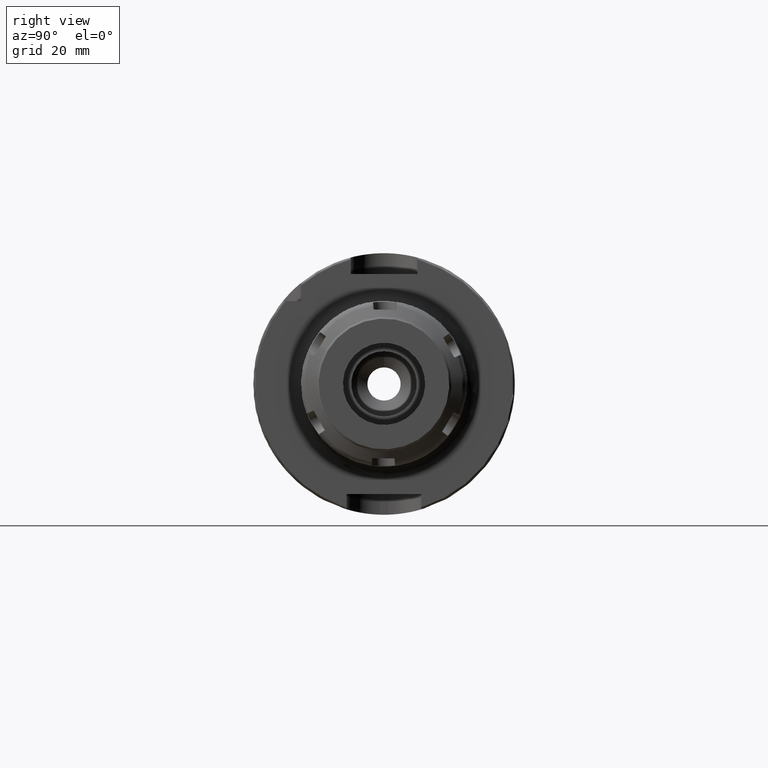
[diagram: clean part render]
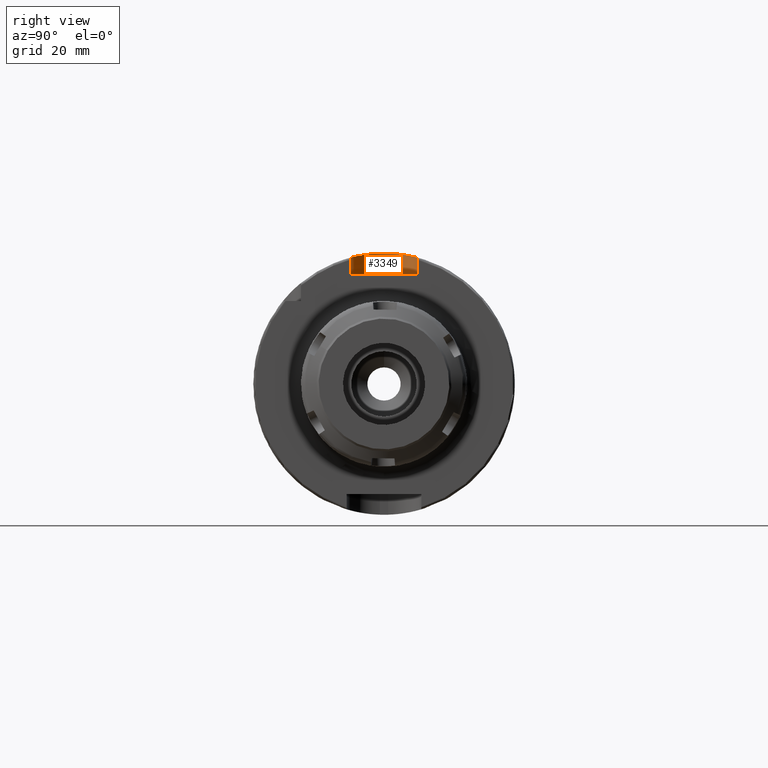
[diagram: same view with one face highlighted and labeled with its STEP entity id]
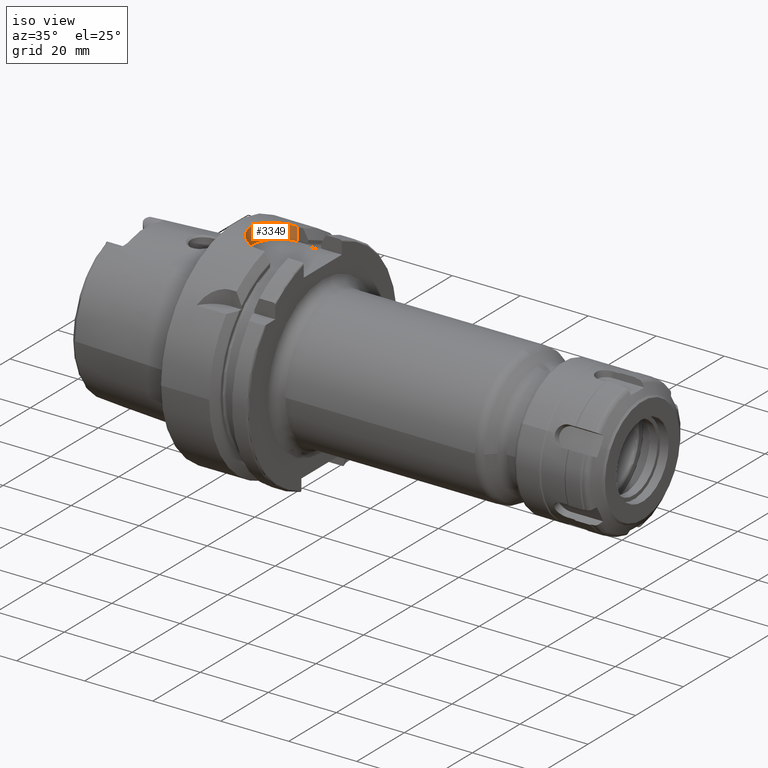
[diagram: same view with one face highlighted and labeled with its STEP entity id]
A machine part, right view. The second image highlights one B-rep face of the part: STEP entity #3349.
A second angle (iso view) of the same face is appended — the face is thin or edge-on in the first view.
In plain terms, the highlighted cylindrical surface (edge-blend (fillet) strip) has radius 8 mm, axis along (0, 0, 1).
Its self-contained STEP definition (entity closure, byte-faithful):
#103=B_SPLINE_CURVE_WITH_KNOTS('',3,(#6269,#6270,#6271,#6272,#6273,#6274,
#6275,#6276,#6277,#6278,#6279,#6280,#6281,#6282,#6283,#6284,#6285,#6286),
 .UNSPECIFIED.,.F.,.F.,(4,2,2,2,2,2,2,2,4),(0.,0.302805879979318,0.605611759958635,
0.908372461246501,1.21113316253437,1.51389386382223,1.8166545651101,2.11946044508942,
2.42226632506874),.UNSPECIFIED.);
#279=CYLINDRICAL_SURFACE('',#3704,8.);
#388=FACE_OUTER_BOUND('',#586,.T.);
#586=EDGE_LOOP('',(#2608,#2609,#2610,#2611));
#799=LINE('',#6261,#1005);
#801=LINE('',#6289,#1007);
#1005=VECTOR('',#4382,10.);
#1007=VECTOR('',#4388,10.);
#1213=CIRCLE('',#3705,8.);
#1499=VERTEX_POINT('',#6258);
#1500=VERTEX_POINT('',#6260);
#1502=VERTEX_POINT('',#6268);
#1503=VERTEX_POINT('',#6287);
#1914=EDGE_CURVE('',#1499,#1500,#799,.T.);
#1917=EDGE_CURVE('',#1500,#1502,#103,.T.);
#1918=EDGE_CURVE('',#1503,#1499,#1213,.T.);
#1919=EDGE_CURVE('',#1503,#1502,#801,.T.);
#2608=ORIENTED_EDGE('',*,*,#1917,.F.);
#2609=ORIENTED_EDGE('',*,*,#1914,.F.);
#2610=ORIENTED_EDGE('',*,*,#1918,.F.);
#2611=ORIENTED_EDGE('',*,*,#1919,.T.);
#3349=ADVANCED_FACE('',(#388),#279,.F.);
#3704=AXIS2_PLACEMENT_3D('',#6267,#4384,#4385);
#3705=AXIS2_PLACEMENT_3D('',#6288,#4386,#4387);
#4382=DIRECTION('',(0.,0.,1.));
#4384=DIRECTION('center_axis',(0.,0.,1.));
#4385=DIRECTION('ref_axis',(0.,1.,0.));
#4386=DIRECTION('center_axis',(0.,0.,1.));
#4387=DIRECTION('ref_axis',(0.,1.,0.));
#4388=DIRECTION('',(0.,0.,1.));
#6258=CARTESIAN_POINT('',(13.,-8.,26.5));
#6260=CARTESIAN_POINT('',(13.,-8.,30.4671954731642));
#6261=CARTESIAN_POINT('',(13.,-8.,26.5));
#6267=CARTESIAN_POINT('Origin',(13.,0.,26.5));
#6268=CARTESIAN_POINT('',(13.,8.,30.4671954731642));
#6269=CARTESIAN_POINT('Ctrl Pts',(13.,-8.,30.4671954731643));
#6270=CARTESIAN_POINT('Ctrl Pts',(11.9906470667356,-8.,30.4671954731643));
#6271=CARTESIAN_POINT('Ctrl Pts',(10.9172075930168,-7.79737202490167,30.5225803085525));
#6272=CARTESIAN_POINT('Ctrl Pts',(8.94758399331801,-6.97961067526075,30.719895002943));
#6273=CARTESIAN_POINT('Ctrl Pts',(8.05099322370438,-6.36470172268915,30.8586830127239));
#6274=CARTESIAN_POINT('Ctrl Pts',(6.63540388828045,-4.94911238726521,31.1170994373341));
#6275=CARTESIAN_POINT('Ctrl Pts',(6.02041263015313,-4.05247770930662,31.2539072689014));
#6276=CARTESIAN_POINT('Ctrl Pts',(5.20259114887399,-2.08269813865027,31.4466478906396));
#6277=CARTESIAN_POINT('Ctrl Pts',(5.,-1.00920233762622,31.5));
#6278=CARTESIAN_POINT('Ctrl Pts',(5.,1.00920233762622,31.5));
#6279=CARTESIAN_POINT('Ctrl Pts',(5.20259114887399,2.08269813865027,31.4466478906396));
#6280=CARTESIAN_POINT('Ctrl Pts',(6.02041263015313,4.05247770930662,31.2539072689014));
#6281=CARTESIAN_POINT('Ctrl Pts',(6.63540388828045,4.94911238726521,31.1170994373341));
#6282=CARTESIAN_POINT('Ctrl Pts',(8.05099322370439,6.36470172268915,30.8586830127239));
#6283=CARTESIAN_POINT('Ctrl Pts',(8.94758399331801,6.97961067526075,30.719895002943));
#6284=CARTESIAN_POINT('Ctrl Pts',(10.9172075930168,7.79737202490167,30.5225803085525));
#6285=CARTESIAN_POINT('Ctrl Pts',(11.9906470667356,8.,30.4671954731643));
#6286=CARTESIAN_POINT('Ctrl Pts',(13.,8.,30.4671954731643));
#6287=CARTESIAN_POINT('',(13.,8.,26.5));
#6288=CARTESIAN_POINT('Origin',(13.,0.,26.5));
#6289=CARTESIAN_POINT('',(13.,8.,26.5));